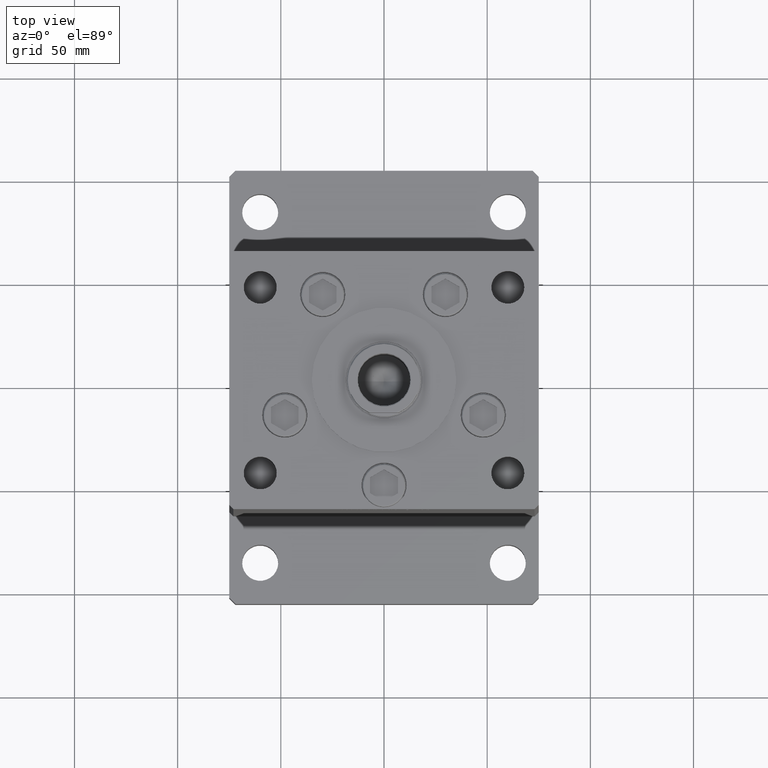
[diagram: clean part render]
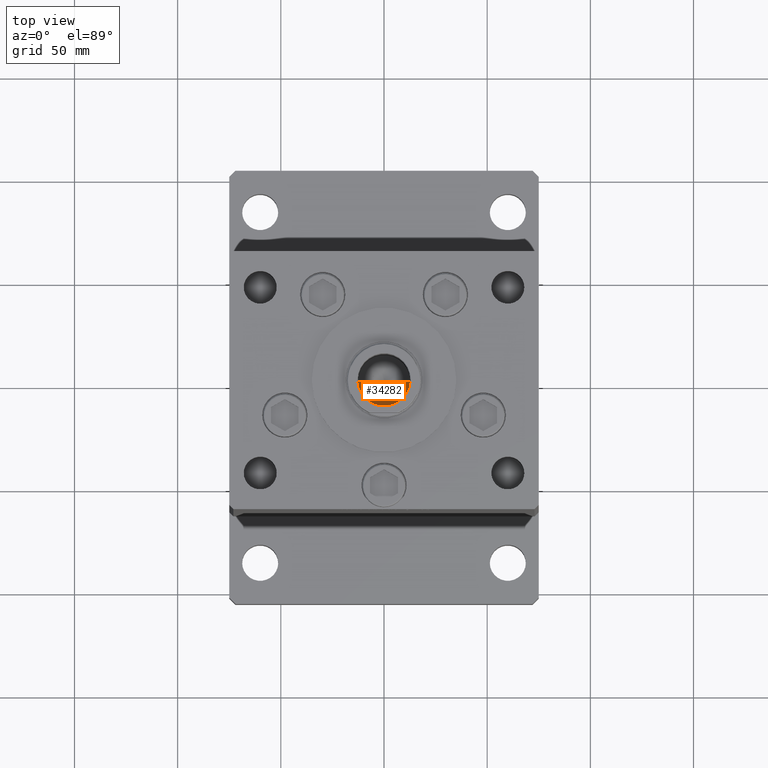
[diagram: same view with one face highlighted and labeled with its STEP entity id]
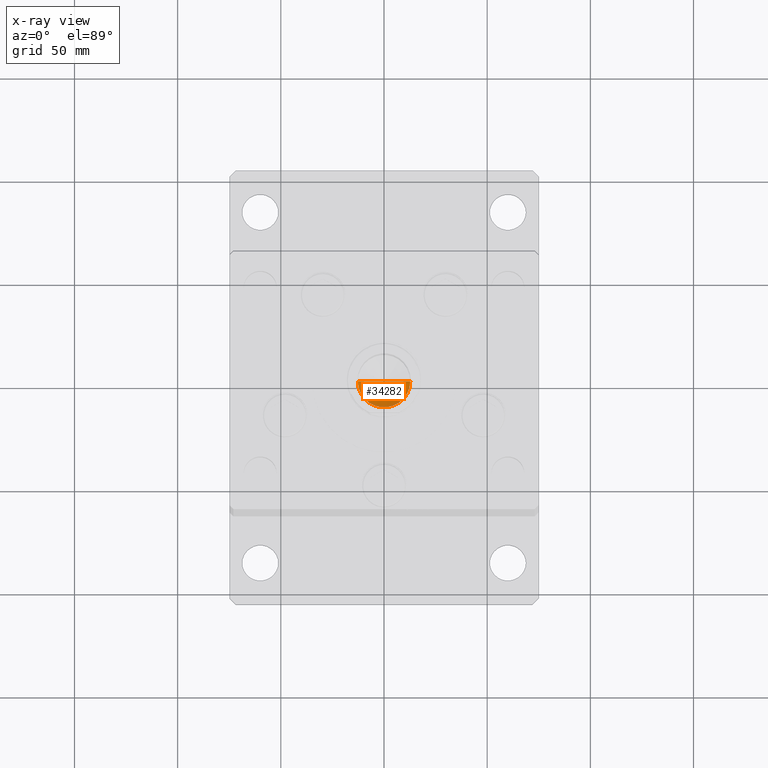
[diagram: x-ray of the same camera — body ghosted, the highlighted face saturated]
A machine part, top view. The second image highlights one B-rep face of the part: STEP entity #34282.
The next image is the same camera in x-ray: the body ghosted, the highlighted face saturated — about 8% of this face is hidden behind the body in this view.
In plain terms, the highlighted conical surface has half-angle 59 deg.
Its self-contained STEP definition (entity closure, byte-faithful):
#475 = LINE ( 'NONE', #30579, #10384 ) ;
#493 = FACE_OUTER_BOUND ( 'NONE', #17714, .T. ) ;
#764 = CARTESIAN_POINT ( 'NONE',  ( 12.74999999999999112, 0.000000000000000000, 137.5000000000000000 ) ) ;
#933 = EDGE_CURVE ( 'NONE', #3658, #32626, #41461, .T. ) ;
#3262 = VERTEX_POINT ( 'NONE', #11162 ) ;
#3495 = CARTESIAN_POINT ( 'NONE',  ( -12.74999999999999112, 1.561424668912874125E-15, 137.5000000000000000 ) ) ;
#3658 = VERTEX_POINT ( 'NONE', #3495 ) ;
#6682 = CONICAL_SURFACE ( 'NONE', #16212, 12.74999999999999112, 1.029744258676655200 ) ;
#8607 = DIRECTION ( 'NONE',  ( -0.000000000000000000, -0.000000000000000000, 1.000000000000000000 ) ) ;
#8860 = DIRECTION ( 'NONE',  ( -0.8571673007021125557, 1.049727191138618942E-16, 0.5150380749100536004 ) ) ;
#9873 = ORIENTED_EDGE ( 'NONE', *, *, #15976, .F. ) ;
#10384 = VECTOR ( 'NONE', #8860, 1000.000000000000114 ) ;
#10551 = VECTOR ( 'NONE', #50611, 1000.000000000000114 ) ;
#11162 = CARTESIAN_POINT ( 'NONE',  ( -1.307202896762960287E-14, 0.000000000000000000, 129.8390271073986355 ) ) ;
#15976 = EDGE_CURVE ( 'NONE', #3262, #32626, #21563, .T. ) ;
#16212 = AXIS2_PLACEMENT_3D ( 'NONE', #33572, #8607, #43015 ) ;
#17491 = CARTESIAN_POINT ( 'NONE',  ( 12.74999999999999112, 0.000000000000000000, 137.5000000000000000 ) ) ;
#17714 = EDGE_LOOP ( 'NONE', ( #9873, #42167, #48250 ) ) ;
#21563 = LINE ( 'NONE', #17491, #10551 ) ;
#22287 = DIRECTION ( 'NONE',  ( 1.000000000000000000, 0.000000000000000000, 0.000000000000000000 ) ) ;
#26352 = DIRECTION ( 'NONE',  ( -0.000000000000000000, -0.000000000000000000, 1.000000000000000000 ) ) ;
#30579 = CARTESIAN_POINT ( 'NONE',  ( -12.74999999999999112, 1.561424668912874125E-15, 137.5000000000000000 ) ) ;
#32626 = VERTEX_POINT ( 'NONE', #764 ) ;
#33572 = CARTESIAN_POINT ( 'NONE',  ( 0.000000000000000000, 0.000000000000000000, 137.5000000000000000 ) ) ;
#34282 = ADVANCED_FACE ( 'NONE', ( #493 ), #6682, .F. ) ;
#41461 = CIRCLE ( 'NONE', #42311, 12.74999999999999112 ) ;
#41499 = EDGE_CURVE ( 'NONE', #3262, #3658, #475, .T. ) ;
#42167 = ORIENTED_EDGE ( 'NONE', *, *, #41499, .T. ) ;
#42311 = AXIS2_PLACEMENT_3D ( 'NONE', #42641, #26352, #22287 ) ;
#42641 = CARTESIAN_POINT ( 'NONE',  ( 0.000000000000000000, 0.000000000000000000, 137.5000000000000000 ) ) ;
#43015 = DIRECTION ( 'NONE',  ( 1.000000000000000000, 0.000000000000000000, 0.000000000000000000 ) ) ;
#48250 = ORIENTED_EDGE ( 'NONE', *, *, #933, .T. ) ;
#50611 = DIRECTION ( 'NONE',  ( 0.8571673007021125557, 0.000000000000000000, 0.5150380749100536004 ) ) ;